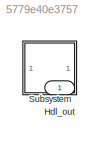
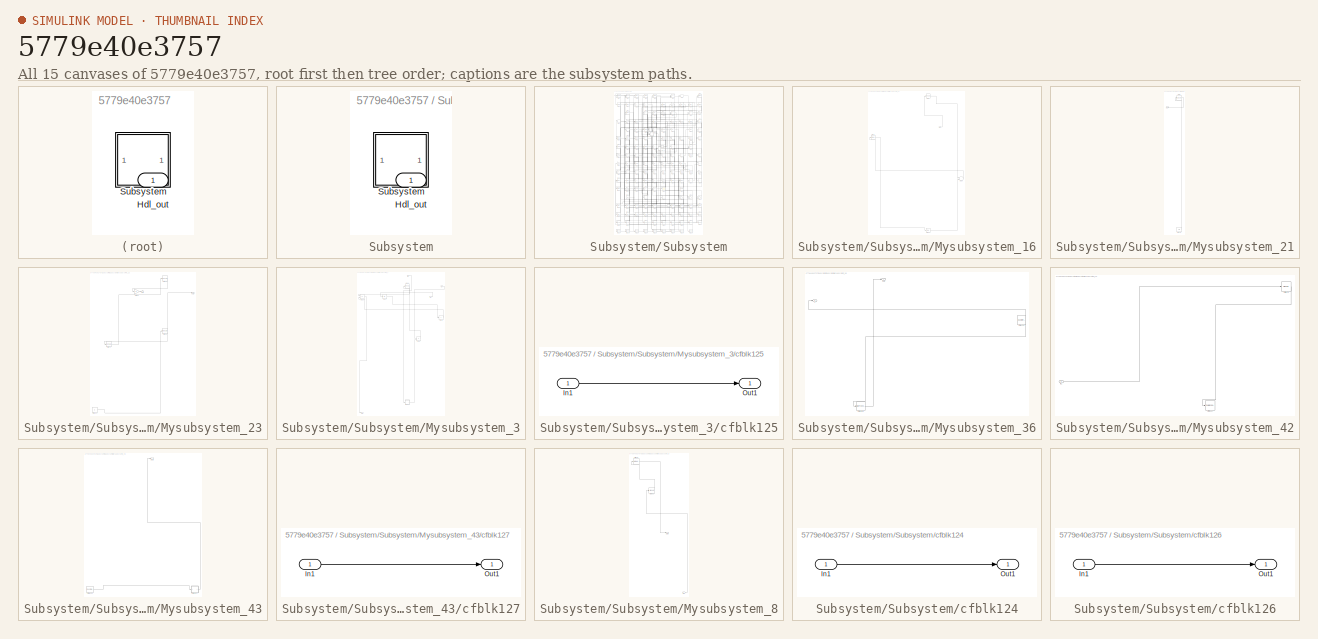
[diagram: thumbnail index - all 15 canvases of the model, root first then tree order]
MODEL slx_5779e40e3757
KIND model
CONFIG AbsTol = auto
CONFIG EnableMultiTasking = off
CONFIG FixedStep = auto
CONFIG MaxStep = auto
CONFIG MinStep = auto
CONFIG RelTol = 1e-3
CONFIG SampleTimeConstraint = Unconstrained
CONFIG SolverName = VariableStepAuto
CONFIG StartTime = 0.0
CONFIG StopTime = 10.0
BLOCK [Outport] Hdl_out
  OutDataTypeStr = uint8
BLOCK [SubSystem] Subsystem
BLOCK [Outport] Subsystem/Hdl_out
  OutDataTypeStr = uint8
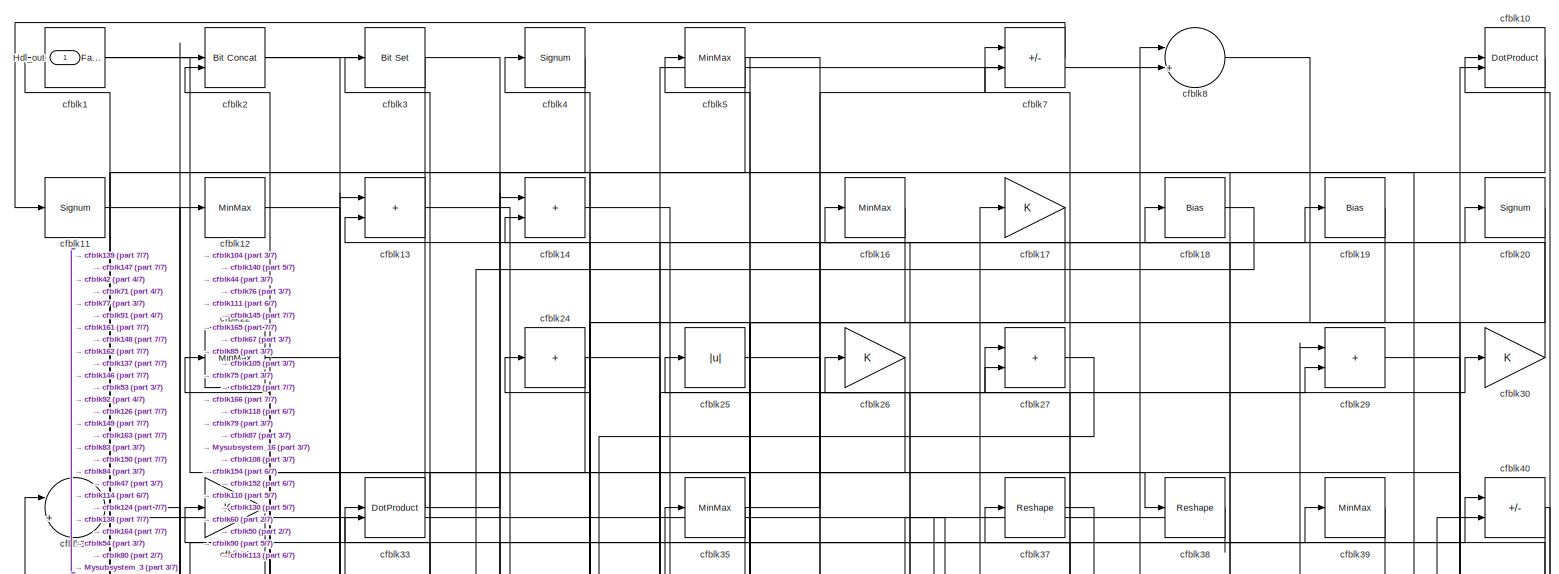
[diagram: Subsystem/Subsystem - part 1/7, full width, top band]
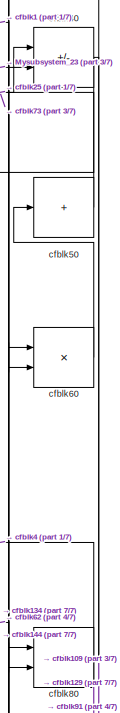
[diagram: Subsystem/Subsystem - part 2/7, top right region]
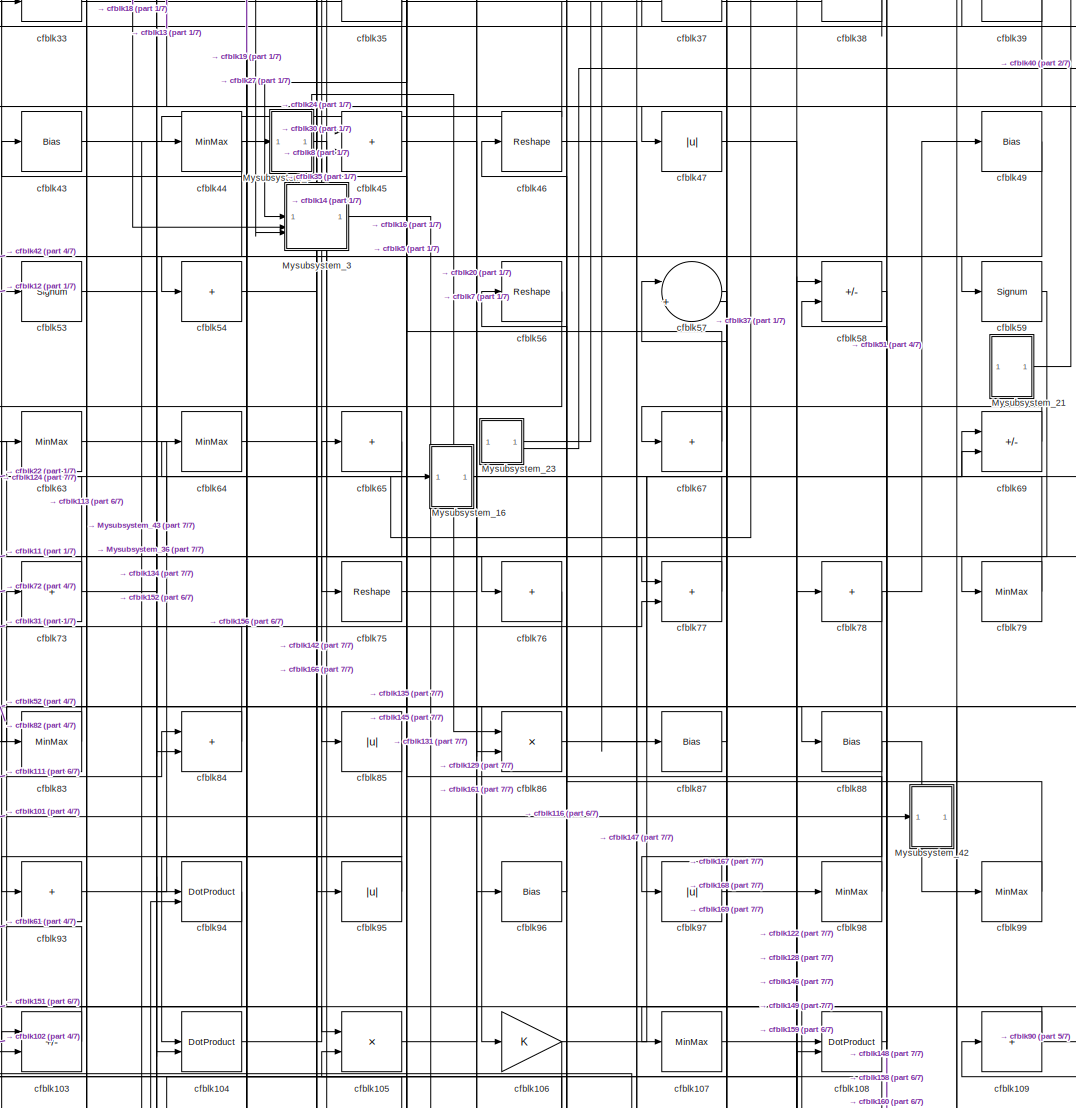
[diagram: Subsystem/Subsystem - part 3/7, central region]
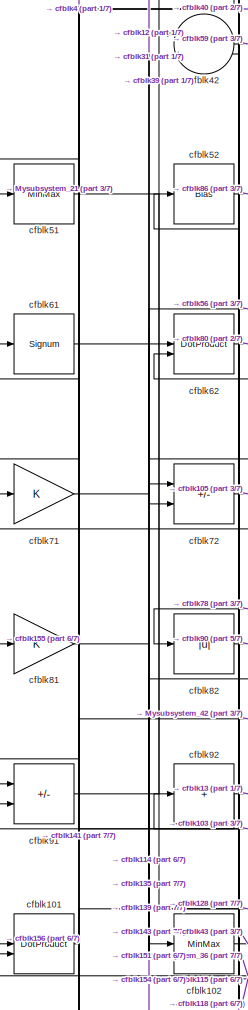
[diagram: Subsystem/Subsystem - part 4/7, middle left region]
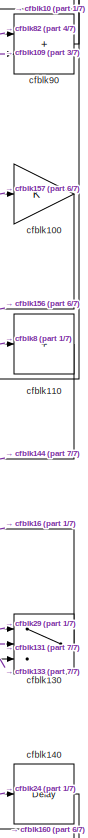
[diagram: Subsystem/Subsystem - part 5/7, middle right region]
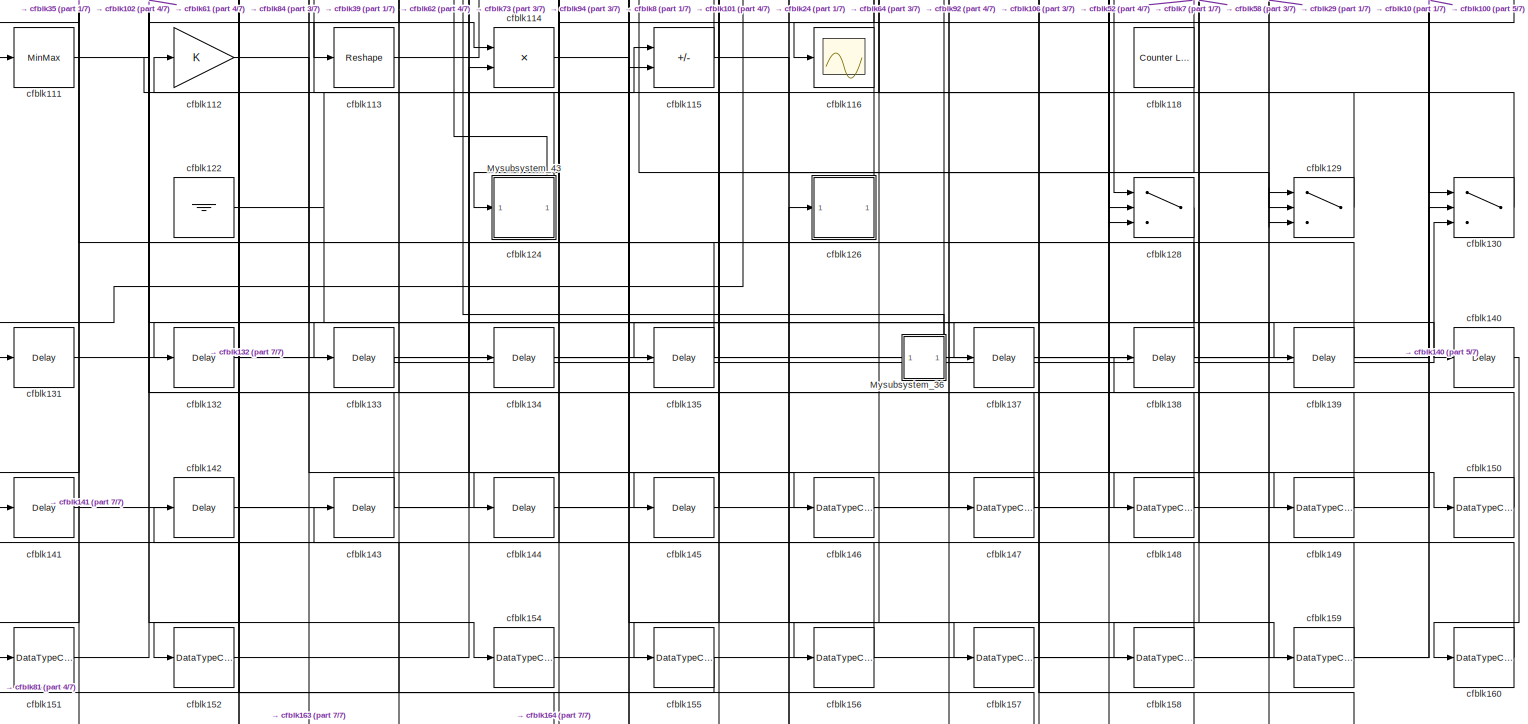
[diagram: Subsystem/Subsystem - part 6/7, full width, bottom band]
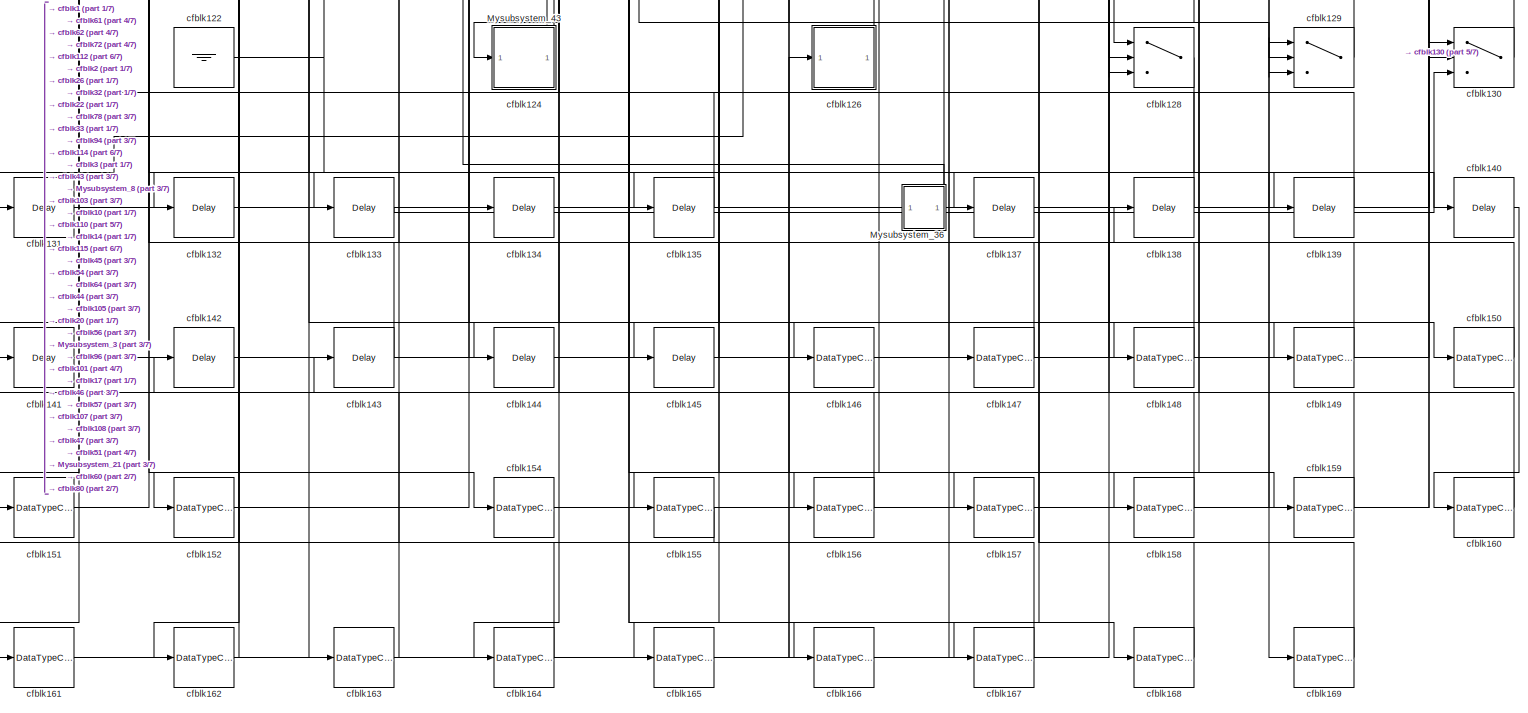
[diagram: Subsystem/Subsystem - part 7/7, full width, bottom band]
BLOCK [SubSystem] Subsystem/Subsystem
BLOCK [Outport] Subsystem/Subsystem/Hdl_out
  OutDataTypeStr = uint8
BLOCK [SubSystem] Subsystem/Subsystem/Mysubsystem_16
  RTWFcnName = Mysubsystem_16
  RTWFcnNameOpts = User specified
  RTWFileNameOpts = Use function name
  RTWSystemCode = Reusable function
  TreatAsAtomicUnit = on
BLOCK [Inport] Subsystem/Subsystem/Mysubsystem_16/In1
BLOCK [Delay] Subsystem/Subsystem/Mysubsystem_16/cfblk136
  InputPortMap = u0
  SampleTime = 1
BLOCK [MinMax] Subsystem/Subsystem/Mysubsystem_16/cfblk41
BLOCK [Reshape] Subsystem/Subsystem/Mysubsystem_16/cfblk6
BLOCK [Sum] Subsystem/Subsystem/Mysubsystem_16/cfblk89
  Inputs = |++
BLOCK [SubSystem] Subsystem/Subsystem/Mysubsystem_21
  RTWFcnName = Mysubsystem_21
  RTWFcnNameOpts = User specified
  RTWFileNameOpts = Use function name
  RTWSystemCode = Reusable function
  TreatAsAtomicUnit = on
BLOCK [Outport] Subsystem/Subsystem/Mysubsystem_21/Out1
BLOCK [Ground] Subsystem/Subsystem/Mysubsystem_21/cfblk119
BLOCK [Signum] Subsystem/Subsystem/Mysubsystem_21/cfblk9
BLOCK [SubSystem] Subsystem/Subsystem/Mysubsystem_23
  RTWFcnName = Mysubsystem_23
  RTWFcnNameOpts = User specified
  RTWFileNameOpts = Use function name
  RTWSystemCode = Reusable function
  TreatAsAtomicUnit = on
BLOCK [Outport] Subsystem/Subsystem/Mysubsystem_23/Out1
BLOCK [Outport] Subsystem/Subsystem/Mysubsystem_23/Out2
  Port = 2
BLOCK [Constant] Subsystem/Subsystem/Mysubsystem_23/cfblk123
  SampleTime = -1
BLOCK [Reshape] Subsystem/Subsystem/Mysubsystem_23/cfblk28
BLOCK [Gain] Subsystem/Subsystem/Mysubsystem_23/cfblk36
BLOCK [Reshape] Subsystem/Subsystem/Mysubsystem_23/cfblk68
BLOCK [Reshape] Subsystem/Subsystem/Mysubsystem_23/cfblk74
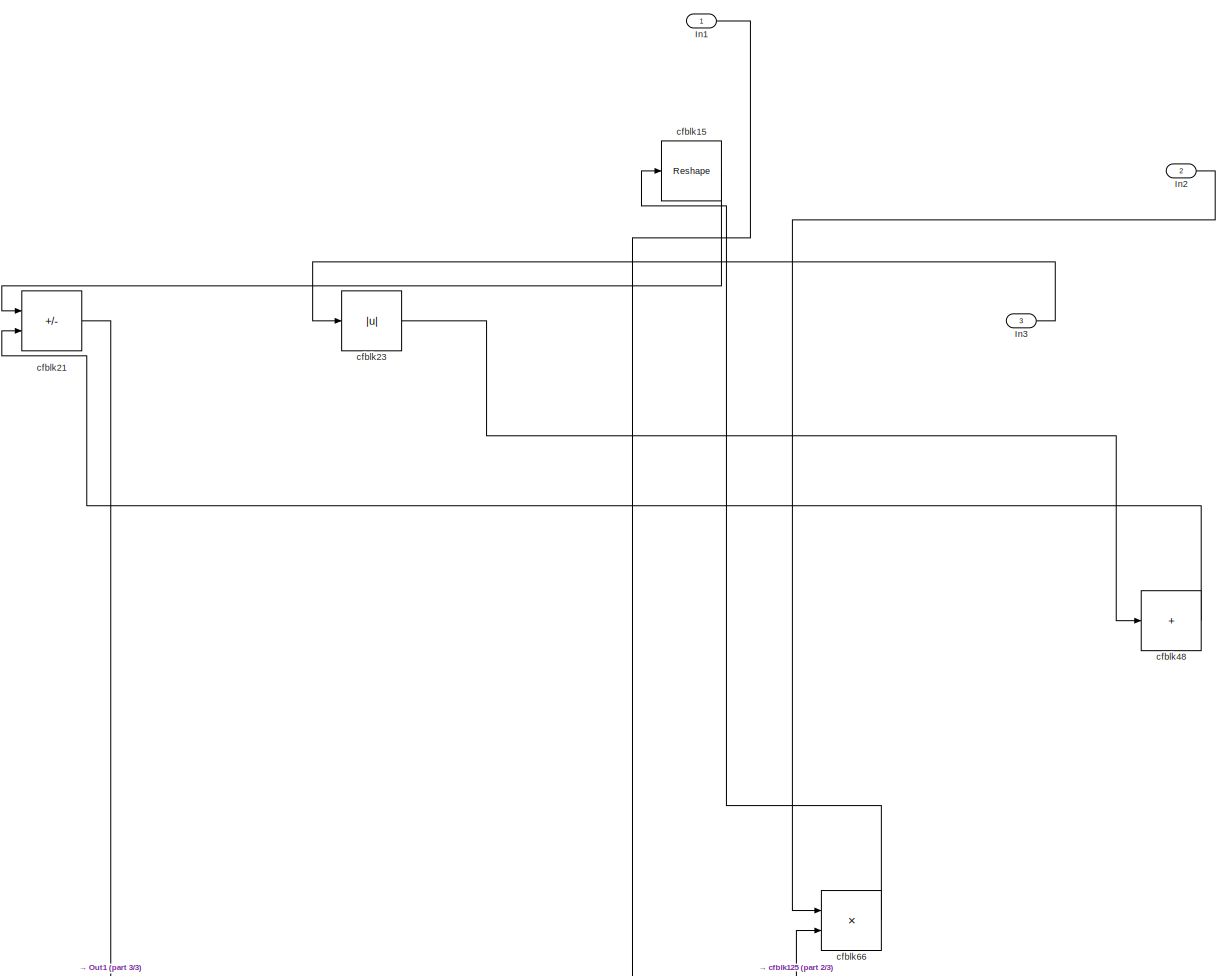
[diagram: Subsystem/Subsystem/Mysubsystem_3 - part 1/3, full width, top band]
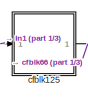
[diagram: Subsystem/Subsystem/Mysubsystem_3 - part 2/3, bottom center region]
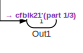
[diagram: Subsystem/Subsystem/Mysubsystem_3 - part 3/3, bottom left region]
BLOCK [SubSystem] Subsystem/Subsystem/Mysubsystem_3
  RTWFcnName = Mysubsystem_3
  RTWFcnNameOpts = User specified
  RTWFileNameOpts = Use function name
  RTWSystemCode = Reusable function
  TreatAsAtomicUnit = on
BLOCK [Inport] Subsystem/Subsystem/Mysubsystem_3/In1
BLOCK [Inport] Subsystem/Subsystem/Mysubsystem_3/In2
  Port = 2
BLOCK [Inport] Subsystem/Subsystem/Mysubsystem_3/In3
  Port = 3
BLOCK [Outport] Subsystem/Subsystem/Mysubsystem_3/Out1
BLOCK [SubSystem] Subsystem/Subsystem/Mysubsystem_3/cfblk125
  LibrarySourceBlock = hdlsllib/Ports &\nSubsystems/Subsystem
BLOCK [Inport] Subsystem/Subsystem/Mysubsystem_3/cfblk125/In1
BLOCK [Outport] Subsystem/Subsystem/Mysubsystem_3/cfblk125/Out1
BLOCK [Reshape] Subsystem/Subsystem/Mysubsystem_3/cfblk15
BLOCK [Sum] Subsystem/Subsystem/Mysubsystem_3/cfblk21
  IconShape = rectangular
  Inputs = +-
BLOCK [Abs] Subsystem/Subsystem/Mysubsystem_3/cfblk23
  SaturateOnIntegerOverflow = off
BLOCK [Sum] Subsystem/Subsystem/Mysubsystem_3/cfblk48
  IconShape = rectangular
  Inputs = +
BLOCK [Product] Subsystem/Subsystem/Mysubsystem_3/cfblk66
  Inputs = */
  RndMeth = Zero
  SaturateOnIntegerOverflow = on
BLOCK [SubSystem] Subsystem/Subsystem/Mysubsystem_36
  RTWFcnName = Mysubsystem_36
  RTWFcnNameOpts = User specified
  RTWFileNameOpts = Use function name
  RTWSystemCode = Reusable function
  TreatAsAtomicUnit = on
BLOCK [Outport] Subsystem/Subsystem/Mysubsystem_36/Out1
BLOCK [Reference] Subsystem/Subsystem/Mysubsystem_36/cfblk120  REF=hdlsllib/Sources/Counter
Free-Running
  SourceBlock = hdlsllib/Sources/Counter\nFree-Running
  SourceType = Counter Free-Running
BLOCK [DataTypeConversion] Subsystem/Subsystem/Mysubsystem_36/cfblk153
  OutDataTypeStr = uint8
  RndMeth = Floor
  SaturateOnIntegerOverflow = off
BLOCK [Outport] Subsystem/Subsystem/Mysubsystem_36/y
  Port = 2
BLOCK [SubSystem] Subsystem/Subsystem/Mysubsystem_42
  RTWFcnName = Mysubsystem_42
  RTWFcnNameOpts = User specified
  RTWFileNameOpts = Use function name
  RTWSystemCode = Reusable function
  TreatAsAtomicUnit = on
BLOCK [Inport] Subsystem/Subsystem/Mysubsystem_42/In1
BLOCK [ToWorkspace] Subsystem/Subsystem/Mysubsystem_42/cfblk117
  MaxDataPoints = inf
  SampleTime = -1
  SaveFormat = Timeseries
  VariableName = simout
BLOCK [Signum] Subsystem/Subsystem/Mysubsystem_42/cfblk70
BLOCK [SubSystem] Subsystem/Subsystem/Mysubsystem_43
  RTWFcnName = Mysubsystem_43
  RTWFcnNameOpts = User specified
  RTWFileNameOpts = Use function name
  RTWSystemCode = Reusable function
  TreatAsAtomicUnit = on
BLOCK [Outport] Subsystem/Subsystem/Mysubsystem_43/Out1
BLOCK [Reference] Subsystem/Subsystem/Mysubsystem_43/cfblk121  REF=hdlsllib/Sources/Counter
Limited
  SourceBlock = hdlsllib/Sources/Counter\nLimited
  SourceType = Counter Limited
BLOCK [SubSystem] Subsystem/Subsystem/Mysubsystem_43/cfblk127
  LibrarySourceBlock = hdlsllib/Ports &\nSubsystems/Subsystem
BLOCK [Inport] Subsystem/Subsystem/Mysubsystem_43/cfblk127/In1
BLOCK [Outport] Subsystem/Subsystem/Mysubsystem_43/cfblk127/Out1
BLOCK [SubSystem] Subsystem/Subsystem/Mysubsystem_8
  RTWFcnName = Mysubsystem_8
  RTWFcnNameOpts = User specified
  RTWFileNameOpts = Use function name
  RTWSystemCode = Reusable function
  TreatAsAtomicUnit = on
BLOCK [Inport] Subsystem/Subsystem/Mysubsystem_8/In1
BLOCK [Outport] Subsystem/Subsystem/Mysubsystem_8/Out1
BLOCK [MinMax] Subsystem/Subsystem/Mysubsystem_8/cfblk34
BLOCK [Signum] Subsystem/Subsystem/Mysubsystem_8/cfblk55
BLOCK [Reference] Subsystem/Subsystem/cfblk1  REF=hdlsllib/Logic and Bit
Operations/Detect Fall
Nonpositive
  SourceBlock = hdlsllib/Logic and Bit\nOperations/Detect Fall\nNonpositive
  SourceType = Detect Fall Nonpositive
BLOCK [DotProduct] Subsystem/Subsystem/cfblk10
  OutDataTypeStr = uint8
BLOCK [Gain] Subsystem/Subsystem/cfblk100
  OutDataTypeStr = uint8
BLOCK [DotProduct] Subsystem/Subsystem/cfblk101
  OutDataTypeStr = uint8
BLOCK [MinMax] Subsystem/Subsystem/cfblk102
  OutDataTypeStr = uint8
BLOCK [Sum] Subsystem/Subsystem/cfblk103
  IconShape = rectangular
  Inputs = +-
  OutDataTypeStr = uint8
BLOCK [DotProduct] Subsystem/Subsystem/cfblk104
  OutDataTypeStr = uint8
BLOCK [Product] Subsystem/Subsystem/cfblk105
  Inputs = */
  OutDataTypeStr = uint8
  RndMeth = Zero
  SaturateOnIntegerOverflow = on
BLOCK [Gain] Subsystem/Subsystem/cfblk106
  OutDataTypeStr = uint8
BLOCK [MinMax] Subsystem/Subsystem/cfblk107
  OutDataTypeStr = uint8
BLOCK [DotProduct] Subsystem/Subsystem/cfblk108
  OutDataTypeStr = uint8
BLOCK [Sum] Subsystem/Subsystem/cfblk109
  IconShape = rectangular
  Inputs = +
  OutDataTypeStr = uint8
BLOCK [Signum] Subsystem/Subsystem/cfblk11
BLOCK [Sum] Subsystem/Subsystem/cfblk110
  IconShape = rectangular
  Inputs = +
  OutDataTypeStr = uint8
BLOCK [MinMax] Subsystem/Subsystem/cfblk111
  OutDataTypeStr = uint8
BLOCK [Gain] Subsystem/Subsystem/cfblk112
  OutDataTypeStr = uint8
BLOCK [Reshape] Subsystem/Subsystem/cfblk113
BLOCK [Product] Subsystem/Subsystem/cfblk114
  Inputs = */
  OutDataTypeStr = uint8
  RndMeth = Zero
  SaturateOnIntegerOverflow = on
BLOCK [Sum] Subsystem/Subsystem/cfblk115
  IconShape = rectangular
  Inputs = +-
  OutDataTypeStr = uint8
BLOCK [Scope] Subsystem/Subsystem/cfblk116
  Floating = off
  NumInputPorts = 1
  ScopeSpecificationString = Simulink.scopes.TimeScopeBlockCfg('CurrentConfiguration', extmgr.ConfigurationSet(extmgr.Configuration('Core','General UI',true),extmgr.Configuration('Core','Source UI',true),extmgr.Configuration('Sources','WiredSimulink',true,'DataLoggingSaveFormat','Array','DataLoggingLimitDataPoints',true,'DataLoggingDecimation','1'),extmgr.Configuration('Visuals','Time Domain',true,'DisplayPropertyDefaults',st...<+829ch>
BLOCK [Reference] Subsystem/Subsystem/cfblk118  REF=hdlsllib/Sources/Counter
Limited
  SourceBlock = hdlsllib/Sources/Counter\nLimited
  SourceType = Counter Limited
BLOCK [MinMax] Subsystem/Subsystem/cfblk12
  OutDataTypeStr = uint8
BLOCK [Ground] Subsystem/Subsystem/cfblk122
BLOCK [SubSystem] Subsystem/Subsystem/cfblk124
  LibrarySourceBlock = hdlsllib/Ports &\nSubsystems/Subsystem
BLOCK [Inport] Subsystem/Subsystem/cfblk124/In1
BLOCK [Outport] Subsystem/Subsystem/cfblk124/Out1
BLOCK [SubSystem] Subsystem/Subsystem/cfblk126
  LibrarySourceBlock = hdlsllib/Ports &\nSubsystems/Subsystem
BLOCK [Inport] Subsystem/Subsystem/cfblk126/In1
BLOCK [Outport] Subsystem/Subsystem/cfblk126/Out1
BLOCK [Switch] Subsystem/Subsystem/cfblk128
  InputSameDT = off
  OutDataTypeStr = uint8
  SaturateOnIntegerOverflow = off
BLOCK [Switch] Subsystem/Subsystem/cfblk129
  InputSameDT = off
  OutDataTypeStr = uint8
  SaturateOnIntegerOverflow = off
BLOCK [Sum] Subsystem/Subsystem/cfblk13
  IconShape = rectangular
  OutDataTypeStr = uint8
BLOCK [Switch] Subsystem/Subsystem/cfblk130
  InputSameDT = off
  OutDataTypeStr = uint8
  SaturateOnIntegerOverflow = off
BLOCK [Delay] Subsystem/Subsystem/cfblk131
  InputPortMap = u0
  SampleTime = 1
BLOCK [Delay] Subsystem/Subsystem/cfblk132
  InputPortMap = u0
  SampleTime = 1
BLOCK [Delay] Subsystem/Subsystem/cfblk133
  InputPortMap = u0
  SampleTime = 1
BLOCK [Delay] Subsystem/Subsystem/cfblk134
  InputPortMap = u0
  SampleTime = 1
BLOCK [Delay] Subsystem/Subsystem/cfblk135
  InputPortMap = u0
  SampleTime = 1
BLOCK [Delay] Subsystem/Subsystem/cfblk137
  InputPortMap = u0
  SampleTime = 1
BLOCK [Delay] Subsystem/Subsystem/cfblk138
  InputPortMap = u0
  SampleTime = 1
BLOCK [Delay] Subsystem/Subsystem/cfblk139
  InputPortMap = u0
  SampleTime = 1
BLOCK [Sum] Subsystem/Subsystem/cfblk14
  IconShape = rectangular
  OutDataTypeStr = uint8
BLOCK [Delay] Subsystem/Subsystem/cfblk140
  InputPortMap = u0
  SampleTime = 1
BLOCK [Delay] Subsystem/Subsystem/cfblk141
  InputPortMap = u0
  SampleTime = 1
BLOCK [Delay] Subsystem/Subsystem/cfblk142
  InputPortMap = u0
  SampleTime = 1
BLOCK [Delay] Subsystem/Subsystem/cfblk143
  InputPortMap = u0
  SampleTime = 1
BLOCK [Delay] Subsystem/Subsystem/cfblk144
  InputPortMap = u0
  SampleTime = 1
BLOCK [Delay] Subsystem/Subsystem/cfblk145
  InputPortMap = u0
  SampleTime = 1
BLOCK [DataTypeConversion] Subsystem/Subsystem/cfblk146
  OutDataTypeStr = uint8
  RndMeth = Floor
  SaturateOnIntegerOverflow = off
BLOCK [DataTypeConversion] Subsystem/Subsystem/cfblk147
  OutDataTypeStr = uint8
  RndMeth = Floor
  SaturateOnIntegerOverflow = off
BLOCK [DataTypeConversion] Subsystem/Subsystem/cfblk148
  OutDataTypeStr = uint8
  RndMeth = Floor
  SaturateOnIntegerOverflow = off
BLOCK [DataTypeConversion] Subsystem/Subsystem/cfblk149
  OutDataTypeStr = uint8
  RndMeth = Floor
  SaturateOnIntegerOverflow = off
BLOCK [DataTypeConversion] Subsystem/Subsystem/cfblk150
  OutDataTypeStr = uint8
  RndMeth = Floor
  SaturateOnIntegerOverflow = off
BLOCK [DataTypeConversion] Subsystem/Subsystem/cfblk151
  OutDataTypeStr = uint8
  RndMeth = Floor
  SaturateOnIntegerOverflow = off
BLOCK [DataTypeConversion] Subsystem/Subsystem/cfblk152
  OutDataTypeStr = uint8
  RndMeth = Floor
  SaturateOnIntegerOverflow = off
BLOCK [DataTypeConversion] Subsystem/Subsystem/cfblk154
  OutDataTypeStr = uint8
  RndMeth = Floor
  SaturateOnIntegerOverflow = off
BLOCK [DataTypeConversion] Subsystem/Subsystem/cfblk155
  OutDataTypeStr = uint8
  RndMeth = Floor
  SaturateOnIntegerOverflow = off
BLOCK [DataTypeConversion] Subsystem/Subsystem/cfblk156
  OutDataTypeStr = uint8
  RndMeth = Floor
  SaturateOnIntegerOverflow = off
BLOCK [DataTypeConversion] Subsystem/Subsystem/cfblk157
  OutDataTypeStr = uint8
  RndMeth = Floor
  SaturateOnIntegerOverflow = off
BLOCK [DataTypeConversion] Subsystem/Subsystem/cfblk158
  OutDataTypeStr = uint8
  RndMeth = Floor
  SaturateOnIntegerOverflow = off
BLOCK [DataTypeConversion] Subsystem/Subsystem/cfblk159
  OutDataTypeStr = uint8
  RndMeth = Floor
  SaturateOnIntegerOverflow = off
BLOCK [MinMax] Subsystem/Subsystem/cfblk16
  OutDataTypeStr = uint8
BLOCK [DataTypeConversion] Subsystem/Subsystem/cfblk160
  OutDataTypeStr = uint8
  RndMeth = Floor
  SaturateOnIntegerOverflow = off
BLOCK [DataTypeConversion] Subsystem/Subsystem/cfblk161
  OutDataTypeStr = uint8
  RndMeth = Floor
  SaturateOnIntegerOverflow = off
BLOCK [DataTypeConversion] Subsystem/Subsystem/cfblk162
  OutDataTypeStr = uint8
  RndMeth = Floor
  SaturateOnIntegerOverflow = off
BLOCK [DataTypeConversion] Subsystem/Subsystem/cfblk163
  OutDataTypeStr = uint8
  RndMeth = Floor
  SaturateOnIntegerOverflow = off
BLOCK [DataTypeConversion] Subsystem/Subsystem/cfblk164
  OutDataTypeStr = uint8
  RndMeth = Floor
  SaturateOnIntegerOverflow = off
BLOCK [DataTypeConversion] Subsystem/Subsystem/cfblk165
  OutDataTypeStr = uint8
  RndMeth = Floor
  SaturateOnIntegerOverflow = off
BLOCK [DataTypeConversion] Subsystem/Subsystem/cfblk166
  OutDataTypeStr = uint8
  RndMeth = Floor
  SaturateOnIntegerOverflow = off
BLOCK [DataTypeConversion] Subsystem/Subsystem/cfblk167
  OutDataTypeStr = uint8
  RndMeth = Floor
  SaturateOnIntegerOverflow = off
BLOCK [DataTypeConversion] Subsystem/Subsystem/cfblk168
  OutDataTypeStr = uint8
  RndMeth = Floor
  SaturateOnIntegerOverflow = off
BLOCK [DataTypeConversion] Subsystem/Subsystem/cfblk169
  OutDataTypeStr = uint8
  RndMeth = Floor
  SaturateOnIntegerOverflow = off
BLOCK [Gain] Subsystem/Subsystem/cfblk17
  OutDataTypeStr = uint8
BLOCK [Bias] Subsystem/Subsystem/cfblk18
  Bias = 0.0
  SaturateOnIntegerOverflow = off
BLOCK [Bias] Subsystem/Subsystem/cfblk19
  Bias = 0.0
  SaturateOnIntegerOverflow = off
BLOCK [Reference] Subsystem/Subsystem/cfblk2  REF=hdlsllib/Logic and Bit
Operations/Bit Concat
  SourceBlock = hdlsllib/Logic and Bit\nOperations/Bit Concat
  SourceType = Bit Concat
BLOCK [Signum] Subsystem/Subsystem/cfblk20
BLOCK [MinMax] Subsystem/Subsystem/cfblk22
  OutDataTypeStr = uint8
BLOCK [Sum] Subsystem/Subsystem/cfblk24
  IconShape = rectangular
  Inputs = +
  OutDataTypeStr = uint8
BLOCK [Abs] Subsystem/Subsystem/cfblk25
  OutDataTypeStr = uint8
  SaturateOnIntegerOverflow = off
BLOCK [Gain] Subsystem/Subsystem/cfblk26
  OutDataTypeStr = uint8
BLOCK [Sum] Subsystem/Subsystem/cfblk27
  IconShape = rectangular
  OutDataTypeStr = uint8
BLOCK [Sum] Subsystem/Subsystem/cfblk29
  IconShape = rectangular
  OutDataTypeStr = uint8
BLOCK [Reference] Subsystem/Subsystem/cfblk3  REF=simulink/Logic and Bit
Operations/Bit Set
  LibrarySourceBlock = hdlsllib/Logic and Bit\nOperations/Bit Set
  SourceBlock = simulink/Logic and Bit\nOperations/Bit Set
  SourceType = Bit Set
BLOCK [Gain] Subsystem/Subsystem/cfblk30
  OutDataTypeStr = uint8
BLOCK [Sum] Subsystem/Subsystem/cfblk31
  Inputs = |++
  OutDataTypeStr = uint8
BLOCK [Gain] Subsystem/Subsystem/cfblk32
  OutDataTypeStr = uint8
BLOCK [DotProduct] Subsystem/Subsystem/cfblk33
  OutDataTypeStr = uint8
BLOCK [MinMax] Subsystem/Subsystem/cfblk35
  OutDataTypeStr = uint8
BLOCK [Reshape] Subsystem/Subsystem/cfblk37
BLOCK [Reshape] Subsystem/Subsystem/cfblk38
BLOCK [MinMax] Subsystem/Subsystem/cfblk39
  OutDataTypeStr = uint8
BLOCK [Signum] Subsystem/Subsystem/cfblk4
BLOCK [Sum] Subsystem/Subsystem/cfblk40
  IconShape = rectangular
  Inputs = +-
  OutDataTypeStr = uint8
BLOCK [Sum] Subsystem/Subsystem/cfblk42
  Inputs = |++
  OutDataTypeStr = uint8
BLOCK [Bias] Subsystem/Subsystem/cfblk43
  Bias = 0.0
  SaturateOnIntegerOverflow = off
BLOCK [MinMax] Subsystem/Subsystem/cfblk44
  OutDataTypeStr = uint8
BLOCK [Sum] Subsystem/Subsystem/cfblk45
  IconShape = rectangular
  OutDataTypeStr = uint8
BLOCK [Reshape] Subsystem/Subsystem/cfblk46
BLOCK [Abs] Subsystem/Subsystem/cfblk47
  OutDataTypeStr = uint8
  SaturateOnIntegerOverflow = off
BLOCK [Bias] Subsystem/Subsystem/cfblk49
  Bias = 0.0
  SaturateOnIntegerOverflow = off
BLOCK [MinMax] Subsystem/Subsystem/cfblk5
  OutDataTypeStr = uint8
BLOCK [Sum] Subsystem/Subsystem/cfblk50
  IconShape = rectangular
  Inputs = +
  OutDataTypeStr = uint8
BLOCK [MinMax] Subsystem/Subsystem/cfblk51
  OutDataTypeStr = uint8
BLOCK [Bias] Subsystem/Subsystem/cfblk52
  Bias = 0.0
  SaturateOnIntegerOverflow = off
BLOCK [Signum] Subsystem/Subsystem/cfblk53
BLOCK [Sum] Subsystem/Subsystem/cfblk54
  IconShape = rectangular
  Inputs = +
  OutDataTypeStr = uint8
BLOCK [Reshape] Subsystem/Subsystem/cfblk56
BLOCK [Sum] Subsystem/Subsystem/cfblk57
  Inputs = |++
  OutDataTypeStr = uint8
BLOCK [Sum] Subsystem/Subsystem/cfblk58
  IconShape = rectangular
  Inputs = +-
  OutDataTypeStr = uint8
BLOCK [Signum] Subsystem/Subsystem/cfblk59
BLOCK [Product] Subsystem/Subsystem/cfblk60
  Inputs = */
  OutDataTypeStr = uint8
  RndMeth = Zero
  SaturateOnIntegerOverflow = on
BLOCK [Signum] Subsystem/Subsystem/cfblk61
BLOCK [DotProduct] Subsystem/Subsystem/cfblk62
  OutDataTypeStr = uint8
BLOCK [MinMax] Subsystem/Subsystem/cfblk63
  OutDataTypeStr = uint8
BLOCK [MinMax] Subsystem/Subsystem/cfblk64
  OutDataTypeStr = uint8
BLOCK [Sum] Subsystem/Subsystem/cfblk65
  IconShape = rectangular
  Inputs = +
  OutDataTypeStr = uint8
BLOCK [Sum] Subsystem/Subsystem/cfblk67
  IconShape = rectangular
  Inputs = +
  OutDataTypeStr = uint8
BLOCK [Sum] Subsystem/Subsystem/cfblk69
  IconShape = rectangular
  Inputs = +-
  OutDataTypeStr = uint8
BLOCK [Sum] Subsystem/Subsystem/cfblk7
  IconShape = rectangular
  Inputs = +-
  OutDataTypeStr = uint8
BLOCK [Gain] Subsystem/Subsystem/cfblk71
  OutDataTypeStr = uint8
BLOCK [Sum] Subsystem/Subsystem/cfblk72
  IconShape = rectangular
  Inputs = +-
  OutDataTypeStr = uint8
BLOCK [Sum] Subsystem/Subsystem/cfblk73
  IconShape = rectangular
  Inputs = +
  OutDataTypeStr = uint8
BLOCK [Reshape] Subsystem/Subsystem/cfblk75
BLOCK [Sum] Subsystem/Subsystem/cfblk76
  IconShape = rectangular
  Inputs = +
  OutDataTypeStr = uint8
BLOCK [Sum] Subsystem/Subsystem/cfblk77
  IconShape = rectangular
  OutDataTypeStr = uint8
BLOCK [Sum] Subsystem/Subsystem/cfblk78
  IconShape = rectangular
  Inputs = +
  OutDataTypeStr = uint8
BLOCK [MinMax] Subsystem/Subsystem/cfblk79
  OutDataTypeStr = uint8
BLOCK [Sum] Subsystem/Subsystem/cfblk8
  Inputs = |++
  OutDataTypeStr = uint8
BLOCK [Sum] Subsystem/Subsystem/cfblk80
  IconShape = rectangular
  OutDataTypeStr = uint8
BLOCK [Gain] Subsystem/Subsystem/cfblk81
  OutDataTypeStr = uint8
BLOCK [Abs] Subsystem/Subsystem/cfblk82
  OutDataTypeStr = uint8
  SaturateOnIntegerOverflow = off
BLOCK [MinMax] Subsystem/Subsystem/cfblk83
  OutDataTypeStr = uint8
BLOCK [Sum] Subsystem/Subsystem/cfblk84
  IconShape = rectangular
  OutDataTypeStr = uint8
BLOCK [Abs] Subsystem/Subsystem/cfblk85
  OutDataTypeStr = uint8
  SaturateOnIntegerOverflow = off
BLOCK [Product] Subsystem/Subsystem/cfblk86
  Inputs = */
  OutDataTypeStr = uint8
  RndMeth = Zero
  SaturateOnIntegerOverflow = on
BLOCK [Bias] Subsystem/Subsystem/cfblk87
  Bias = 0.0
  SaturateOnIntegerOverflow = off
BLOCK [Bias] Subsystem/Subsystem/cfblk88
  Bias = 0.0
  SaturateOnIntegerOverflow = off
BLOCK [Sum] Subsystem/Subsystem/cfblk90
  IconShape = rectangular
  OutDataTypeStr = uint8
BLOCK [Sum] Subsystem/Subsystem/cfblk91
  IconShape = rectangular
  Inputs = +-
  OutDataTypeStr = uint8
BLOCK [Sum] Subsystem/Subsystem/cfblk92
  IconShape = rectangular
  Inputs = +
  OutDataTypeStr = uint8
BLOCK [Sum] Subsystem/Subsystem/cfblk93
  IconShape = rectangular
  Inputs = +
  OutDataTypeStr = uint8
BLOCK [DotProduct] Subsystem/Subsystem/cfblk94
  OutDataTypeStr = uint8
BLOCK [Abs] Subsystem/Subsystem/cfblk95
  OutDataTypeStr = uint8
  SaturateOnIntegerOverflow = off
BLOCK [Bias] Subsystem/Subsystem/cfblk96
  Bias = 0.0
  SaturateOnIntegerOverflow = off
BLOCK [Abs] Subsystem/Subsystem/cfblk97
  OutDataTypeStr = uint8
  SaturateOnIntegerOverflow = off
BLOCK [MinMax] Subsystem/Subsystem/cfblk98
  OutDataTypeStr = uint8
BLOCK [MinMax] Subsystem/Subsystem/cfblk99
  OutDataTypeStr = uint8
LINE Subsystem/Subsystem/Mysubsystem_16/In1:1 -> Subsystem/Subsystem/Mysubsystem_16/cfblk6:1
LINE Subsystem/Subsystem/Mysubsystem_16/cfblk136:1 -> Subsystem/Subsystem/Mysubsystem_16/cfblk89:2
LINE Subsystem/Subsystem/Mysubsystem_16/cfblk41:1 -> Subsystem/Subsystem/Mysubsystem_16/cfblk136:1
LINE Subsystem/Subsystem/Mysubsystem_16/cfblk6:1 -> Subsystem/Subsystem/Mysubsystem_16/cfblk89:1
LINE Subsystem/Subsystem/Mysubsystem_16/cfblk89:1 -> Subsystem/Subsystem/Mysubsystem_16/cfblk41:1
LINE Subsystem/Subsystem/Mysubsystem_21/cfblk119:1 -> Subsystem/Subsystem/Mysubsystem_21/cfblk9:1
LINE Subsystem/Subsystem/Mysubsystem_21/cfblk9:1 -> Subsystem/Subsystem/Mysubsystem_21/Out1:1
NET Subsystem/Subsystem/Mysubsystem_21:1 -> Subsystem/Subsystem/cfblk148:1, Subsystem/Subsystem/cfblk51:1
LINE Subsystem/Subsystem/Mysubsystem_23/cfblk123:1 -> Subsystem/Subsystem/Mysubsystem_23/cfblk68:1
LINE Subsystem/Subsystem/Mysubsystem_23/cfblk28:1 -> Subsystem/Subsystem/Mysubsystem_23/cfblk36:1
LINE Subsystem/Subsystem/Mysubsystem_23/cfblk36:1 -> Subsystem/Subsystem/Mysubsystem_23/Out1:1
NET Subsystem/Subsystem/Mysubsystem_23/cfblk68:1 -> Subsystem/Subsystem/Mysubsystem_23/Out2:1, Subsystem/Subsystem/Mysubsystem_23/cfblk74:1
LINE Subsystem/Subsystem/Mysubsystem_23/cfblk74:1 -> Subsystem/Subsystem/Mysubsystem_23/cfblk28:1
NET Subsystem/Subsystem/Mysubsystem_23:1 -> Subsystem/Subsystem/cfblk44:1, Subsystem/Subsystem/cfblk87:1
LINE Subsystem/Subsystem/Mysubsystem_23:2 -> Subsystem/Subsystem/cfblk40:2
LINE Subsystem/Subsystem/Mysubsystem_3/In1:1 -> Subsystem/Subsystem/Mysubsystem_3/cfblk125:1
LINE Subsystem/Subsystem/Mysubsystem_3/In2:1 -> Subsystem/Subsystem/Mysubsystem_3/cfblk66:1
LINE Subsystem/Subsystem/Mysubsystem_3/In3:1 -> Subsystem/Subsystem/Mysubsystem_3/cfblk23:1
LINE Subsystem/Subsystem/Mysubsystem_3/cfblk125/In1:1 -> Subsystem/Subsystem/Mysubsystem_3/cfblk125/Out1:1
LINE Subsystem/Subsystem/Mysubsystem_3/cfblk125:1 -> Subsystem/Subsystem/Mysubsystem_3/cfblk66:2
LINE Subsystem/Subsystem/Mysubsystem_3/cfblk15:1 -> Subsystem/Subsystem/Mysubsystem_3/cfblk21:1
LINE Subsystem/Subsystem/Mysubsystem_3/cfblk21:1 -> Subsystem/Subsystem/Mysubsystem_3/Out1:1
LINE Subsystem/Subsystem/Mysubsystem_3/cfblk23:1 -> Subsystem/Subsystem/Mysubsystem_3/cfblk48:1
LINE Subsystem/Subsystem/Mysubsystem_3/cfblk48:1 -> Subsystem/Subsystem/Mysubsystem_3/cfblk21:2
LINE Subsystem/Subsystem/Mysubsystem_3/cfblk66:1 -> Subsystem/Subsystem/Mysubsystem_3/cfblk15:1
NET Subsystem/Subsystem/Mysubsystem_36/cfblk120:1 -> Subsystem/Subsystem/Mysubsystem_36/cfblk153:1, Subsystem/Subsystem/Mysubsystem_36/y:1
LINE Subsystem/Subsystem/Mysubsystem_36/cfblk153:1 -> Subsystem/Subsystem/Mysubsystem_36/Out1:1
LINE Subsystem/Subsystem/Mysubsystem_36:1 -> Subsystem/Subsystem/cfblk94:2
LINE Subsystem/Subsystem/Mysubsystem_36:2 -> Subsystem/Subsystem/cfblk101:2
LINE Subsystem/Subsystem/Mysubsystem_3:1 -> Subsystem/Subsystem/cfblk131:1
LINE Subsystem/Subsystem/Mysubsystem_42/In1:1 -> Subsystem/Subsystem/Mysubsystem_42/cfblk70:1
LINE Subsystem/Subsystem/Mysubsystem_42/cfblk70:1 -> Subsystem/Subsystem/Mysubsystem_42/cfblk117:1
LINE Subsystem/Subsystem/Mysubsystem_43/cfblk121:1 -> Subsystem/Subsystem/Mysubsystem_43/cfblk127:1
LINE Subsystem/Subsystem/Mysubsystem_43/cfblk127/In1:1 -> Subsystem/Subsystem/Mysubsystem_43/cfblk127/Out1:1
LINE Subsystem/Subsystem/Mysubsystem_43/cfblk127:1 -> Subsystem/Subsystem/Mysubsystem_43/Out1:1
LINE Subsystem/Subsystem/Mysubsystem_43:1 -> Subsystem/Subsystem/Mysubsystem_8:1
LINE Subsystem/Subsystem/Mysubsystem_8/In1:1 -> Subsystem/Subsystem/Mysubsystem_8/cfblk55:1
LINE Subsystem/Subsystem/Mysubsystem_8/cfblk34:1 -> Subsystem/Subsystem/Mysubsystem_8/Out1:1
LINE Subsystem/Subsystem/Mysubsystem_8/cfblk55:1 -> Subsystem/Subsystem/Mysubsystem_8/cfblk34:1
LINE Subsystem/Subsystem/Mysubsystem_8:1 -> Subsystem/Subsystem/cfblk86:1
LINE Subsystem/Subsystem/cfblk100:1 -> Subsystem/Subsystem/cfblk156:1
NET Subsystem/Subsystem/cfblk101:1 -> Subsystem/Subsystem/Mysubsystem_42:1, Subsystem/Subsystem/cfblk141:1
LINE Subsystem/Subsystem/cfblk102:1 -> Subsystem/Subsystem/cfblk43:1
NET Subsystem/Subsystem/cfblk103:1 -> Subsystem/Subsystem/cfblk42:2, Subsystem/Subsystem/cfblk61:1
NET Subsystem/Subsystem/cfblk104:1 -> Subsystem/Subsystem/cfblk19:1, Subsystem/Subsystem/cfblk35:1
LINE Subsystem/Subsystem/cfblk105:1 -> Subsystem/Subsystem/cfblk20:1
NET Subsystem/Subsystem/cfblk106:1 -> Subsystem/Subsystem/cfblk116:1, Subsystem/Subsystem/cfblk69:2
LINE Subsystem/Subsystem/cfblk107:1 -> Subsystem/Subsystem/cfblk149:1
LINE Subsystem/Subsystem/cfblk108:1 -> Subsystem/Subsystem/cfblk18:1
NET Subsystem/Subsystem/cfblk109:1 -> Subsystem/Subsystem/cfblk107:1, Subsystem/Subsystem/cfblk90:2
LINE Subsystem/Subsystem/cfblk10:1 -> Subsystem/Subsystem/cfblk124:1
LINE Subsystem/Subsystem/cfblk110:1 -> Subsystem/Subsystem/cfblk144:1
NET Subsystem/Subsystem/cfblk111:1 -> Subsystem/Subsystem/cfblk115:1, Subsystem/Subsystem/cfblk84:1
LINE Subsystem/Subsystem/cfblk112:1 -> Subsystem/Subsystem/cfblk163:1
LINE Subsystem/Subsystem/cfblk113:1 -> Subsystem/Subsystem/cfblk8:1
NET Subsystem/Subsystem/cfblk114:1 -> Subsystem/Subsystem/cfblk157:1, Subsystem/Subsystem/cfblk24:1
NET Subsystem/Subsystem/cfblk115:1 -> Subsystem/Subsystem/cfblk159:1, Subsystem/Subsystem/cfblk92:1
NET Subsystem/Subsystem/cfblk118:1 -> Subsystem/Subsystem/cfblk155:1, Subsystem/Subsystem/cfblk52:1, Subsystem/Subsystem/cfblk7:2
LINE Subsystem/Subsystem/cfblk11:1 -> Subsystem/Subsystem/cfblk77:1
NET Subsystem/Subsystem/cfblk122:1 -> Subsystem/Subsystem/cfblk169:1, Subsystem/Subsystem/cfblk78:1
LINE Subsystem/Subsystem/cfblk124/In1:1 -> Subsystem/Subsystem/cfblk124/Out1:1
LINE Subsystem/Subsystem/cfblk124:1 -> Subsystem/Subsystem/cfblk103:1
LINE Subsystem/Subsystem/cfblk126/In1:1 -> Subsystem/Subsystem/cfblk126/Out1:1
LINE Subsystem/Subsystem/cfblk126:1 -> Subsystem/Subsystem/cfblk33:1
NET Subsystem/Subsystem/cfblk128:1 -> Subsystem/Subsystem/cfblk132:1, Subsystem/Subsystem/cfblk133:1
LINE Subsystem/Subsystem/cfblk129:1 -> Subsystem/Subsystem/cfblk26:1
LINE Subsystem/Subsystem/cfblk12:1 -> Subsystem/Subsystem/cfblk53:1
LINE Subsystem/Subsystem/cfblk130:1 -> Subsystem/Subsystem/cfblk16:1
LINE Subsystem/Subsystem/cfblk131:1 -> Subsystem/Subsystem/cfblk130:2
LINE Subsystem/Subsystem/cfblk132:1 -> Subsystem/Subsystem/cfblk115:2
LINE Subsystem/Subsystem/cfblk133:1 -> Subsystem/Subsystem/cfblk130:3
LINE Subsystem/Subsystem/cfblk134:1 -> Subsystem/Subsystem/cfblk60:1
LINE Subsystem/Subsystem/cfblk135:1 -> Subsystem/Subsystem/cfblk62:1
LINE Subsystem/Subsystem/cfblk137:1 -> Subsystem/Subsystem/cfblk129:1
LINE Subsystem/Subsystem/cfblk138:1 -> Subsystem/Subsystem/cfblk14:2
LINE Subsystem/Subsystem/cfblk139:1 -> Subsystem/Subsystem/cfblk1:1
LINE Subsystem/Subsystem/cfblk13:1 -> Subsystem/Subsystem/cfblk47:1
LINE Subsystem/Subsystem/cfblk140:1 -> Subsystem/Subsystem/cfblk160:1
LINE Subsystem/Subsystem/cfblk141:1 -> Subsystem/Subsystem/cfblk114:2
LINE Subsystem/Subsystem/cfblk142:1 -> Subsystem/Subsystem/cfblk45:1
LINE Subsystem/Subsystem/cfblk143:1 -> Subsystem/Subsystem/cfblk72:1
LINE Subsystem/Subsystem/cfblk144:1 -> Subsystem/Subsystem/cfblk80:1
LINE Subsystem/Subsystem/cfblk145:1 -> Subsystem/Subsystem/cfblk105:2
LINE Subsystem/Subsystem/cfblk146:1 -> Subsystem/Subsystem/cfblk108:1
LINE Subsystem/Subsystem/cfblk147:1 -> Subsystem/Subsystem/cfblk2:1
LINE Subsystem/Subsystem/cfblk148:1 -> Subsystem/Subsystem/cfblk2:2
LINE Subsystem/Subsystem/cfblk149:1 -> Subsystem/Subsystem/cfblk3:1
LINE Subsystem/Subsystem/cfblk14:1 -> Subsystem/Subsystem/cfblk76:1
LINE Subsystem/Subsystem/cfblk150:1 -> Subsystem/Subsystem/cfblk138:1
LINE Subsystem/Subsystem/cfblk151:1 -> Subsystem/Subsystem/cfblk102:1
LINE Subsystem/Subsystem/cfblk152:1 -> Subsystem/Subsystem/cfblk94:1
NET Subsystem/Subsystem/cfblk154:1 -> Subsystem/Subsystem/cfblk10:2, Subsystem/Subsystem/cfblk29:1
LINE Subsystem/Subsystem/cfblk155:1 -> Subsystem/Subsystem/cfblk81:1
NET Subsystem/Subsystem/cfblk156:1 -> Subsystem/Subsystem/cfblk101:1, Subsystem/Subsystem/cfblk64:1
LINE Subsystem/Subsystem/cfblk157:1 -> Subsystem/Subsystem/cfblk100:1
LINE Subsystem/Subsystem/cfblk158:1 -> Subsystem/Subsystem/cfblk62:2
LINE Subsystem/Subsystem/cfblk159:1 -> Subsystem/Subsystem/cfblk58:1
LINE Subsystem/Subsystem/cfblk160:1 -> Subsystem/Subsystem/cfblk58:2
NET Subsystem/Subsystem/cfblk161:1 -> Subsystem/Subsystem/cfblk108:2, Subsystem/Subsystem/cfblk96:1
LINE Subsystem/Subsystem/cfblk162:1 -> Subsystem/Subsystem/cfblk32:1
LINE Subsystem/Subsystem/cfblk163:1 -> Subsystem/Subsystem/cfblk33:2
LINE Subsystem/Subsystem/cfblk164:1 -> Subsystem/Subsystem/cfblk112:1
LINE Subsystem/Subsystem/cfblk165:1 -> Subsystem/Subsystem/cfblk126:1
LINE Subsystem/Subsystem/cfblk166:1 -> Subsystem/Subsystem/cfblk17:1
NET Subsystem/Subsystem/cfblk167:1 -> Subsystem/Subsystem/cfblk142:1, Subsystem/Subsystem/cfblk143:1
LINE Subsystem/Subsystem/cfblk168:1 -> Subsystem/Subsystem/cfblk57:1
LINE Subsystem/Subsystem/cfblk169:1 -> Subsystem/Subsystem/cfblk57:2
LINE Subsystem/Subsystem/cfblk16:1 -> Subsystem/Subsystem/cfblk85:1
LINE Subsystem/Subsystem/cfblk17:1 -> Subsystem/Subsystem/cfblk165:1
LINE Subsystem/Subsystem/cfblk18:1 -> Subsystem/Subsystem/Mysubsystem_3:2
LINE Subsystem/Subsystem/cfblk19:1 -> Subsystem/Subsystem/cfblk54:1
LINE Subsystem/Subsystem/cfblk1:1 -> Subsystem/Subsystem/cfblk60:2
NET Subsystem/Subsystem/cfblk20:1 -> Subsystem/Subsystem/cfblk145:1, Subsystem/Subsystem/cfblk164:1
LINE Subsystem/Subsystem/cfblk22:1 -> Subsystem/Subsystem/cfblk137:1
NET Subsystem/Subsystem/cfblk24:1 -> Subsystem/Subsystem/cfblk140:1, Subsystem/Subsystem/cfblk83:1
LINE Subsystem/Subsystem/cfblk25:1 -> Subsystem/Subsystem/cfblk29:2
LINE Subsystem/Subsystem/cfblk26:1 -> Subsystem/Subsystem/cfblk162:1
LINE Subsystem/Subsystem/cfblk27:1 -> Subsystem/Subsystem/Mysubsystem_3:3
LINE Subsystem/Subsystem/cfblk29:1 -> Subsystem/Subsystem/cfblk130:1
LINE Subsystem/Subsystem/cfblk2:1 -> Subsystem/Subsystem/cfblk146:1
LINE Subsystem/Subsystem/cfblk30:1 -> Subsystem/Subsystem/cfblk13:2
LINE Subsystem/Subsystem/cfblk31:1 -> Subsystem/Subsystem/cfblk42:1
LINE Subsystem/Subsystem/cfblk32:1 -> Subsystem/Subsystem/cfblk161:1
NET Subsystem/Subsystem/cfblk33:1 -> Subsystem/Subsystem/Hdl_out:1, Subsystem/Subsystem/cfblk14:1
NET Subsystem/Subsystem/cfblk35:1 -> Subsystem/Subsystem/cfblk111:1, Subsystem/Subsystem/cfblk27:1
LINE Subsystem/Subsystem/cfblk37:1 -> Subsystem/Subsystem/Mysubsystem_16:1
LINE Subsystem/Subsystem/cfblk38:1 -> Subsystem/Subsystem/cfblk31:2
LINE Subsystem/Subsystem/cfblk39:1 -> Subsystem/Subsystem/cfblk152:1
LINE Subsystem/Subsystem/cfblk3:1 -> Subsystem/Subsystem/cfblk150:1
NET Subsystem/Subsystem/cfblk40:1 -> Subsystem/Subsystem/cfblk109:1, Subsystem/Subsystem/cfblk91:1
LINE Subsystem/Subsystem/cfblk42:1 -> Subsystem/Subsystem/cfblk59:1
LINE Subsystem/Subsystem/cfblk43:1 -> Subsystem/Subsystem/cfblk134:1
NET Subsystem/Subsystem/cfblk44:1 -> Subsystem/Subsystem/cfblk103:2, Subsystem/Subsystem/cfblk128:2, Subsystem/Subsystem/cfblk8:2
LINE Subsystem/Subsystem/cfblk45:1 -> Subsystem/Subsystem/cfblk129:2
LINE Subsystem/Subsystem/cfblk46:1 -> Subsystem/Subsystem/cfblk147:1
LINE Subsystem/Subsystem/cfblk47:1 -> Subsystem/Subsystem/cfblk128:3
LINE Subsystem/Subsystem/cfblk49:1 -> Subsystem/Subsystem/cfblk104:2
LINE Subsystem/Subsystem/cfblk4:1 -> Subsystem/Subsystem/cfblk71:1
LINE Subsystem/Subsystem/cfblk50:1 -> Subsystem/Subsystem/cfblk25:1
LINE Subsystem/Subsystem/cfblk51:1 -> Subsystem/Subsystem/cfblk128:1
LINE Subsystem/Subsystem/cfblk52:1 -> Subsystem/Subsystem/cfblk86:2
LINE Subsystem/Subsystem/cfblk53:1 -> Subsystem/Subsystem/cfblk88:1
NET Subsystem/Subsystem/cfblk54:1 -> Subsystem/Subsystem/cfblk166:1, Subsystem/Subsystem/cfblk30:1
NET Subsystem/Subsystem/cfblk56:1 -> Subsystem/Subsystem/cfblk135:1, Subsystem/Subsystem/cfblk72:2
LINE Subsystem/Subsystem/cfblk57:1 -> Subsystem/Subsystem/cfblk167:1
LINE Subsystem/Subsystem/cfblk58:1 -> Subsystem/Subsystem/cfblk158:1
LINE Subsystem/Subsystem/cfblk59:1 -> Subsystem/Subsystem/cfblk79:1
NET Subsystem/Subsystem/cfblk5:1 -> Subsystem/Subsystem/Mysubsystem_3:1, Subsystem/Subsystem/cfblk38:1, Subsystem/Subsystem/cfblk84:2
LINE Subsystem/Subsystem/cfblk60:1 -> Subsystem/Subsystem/cfblk50:1
NET Subsystem/Subsystem/cfblk61:1 -> Subsystem/Subsystem/cfblk114:1, Subsystem/Subsystem/cfblk139:1
LINE Subsystem/Subsystem/cfblk62:1 -> Subsystem/Subsystem/cfblk80:2
LINE Subsystem/Subsystem/cfblk63:1 -> Subsystem/Subsystem/cfblk95:1
LINE Subsystem/Subsystem/cfblk64:1 -> Subsystem/Subsystem/cfblk168:1
LINE Subsystem/Subsystem/cfblk65:1 -> Subsystem/Subsystem/cfblk75:1
LINE Subsystem/Subsystem/cfblk67:1 -> Subsystem/Subsystem/cfblk5:1
LINE Subsystem/Subsystem/cfblk69:1 -> Subsystem/Subsystem/cfblk67:1
LINE Subsystem/Subsystem/cfblk71:1 -> Subsystem/Subsystem/cfblk12:1
LINE Subsystem/Subsystem/cfblk72:1 -> Subsystem/Subsystem/cfblk105:1
NET Subsystem/Subsystem/cfblk73:1 -> Subsystem/Subsystem/cfblk113:1, Subsystem/Subsystem/cfblk40:1, Subsystem/Subsystem/cfblk63:1
LINE Subsystem/Subsystem/cfblk75:1 -> Subsystem/Subsystem/cfblk7:1
LINE Subsystem/Subsystem/cfblk76:1 -> Subsystem/Subsystem/cfblk106:1
LINE Subsystem/Subsystem/cfblk77:1 -> Subsystem/Subsystem/cfblk22:1
NET Subsystem/Subsystem/cfblk78:1 -> Subsystem/Subsystem/cfblk49:1, Subsystem/Subsystem/cfblk82:1
LINE Subsystem/Subsystem/cfblk79:1 -> Subsystem/Subsystem/cfblk37:1
LINE Subsystem/Subsystem/cfblk7:1 -> Subsystem/Subsystem/cfblk11:1
NET Subsystem/Subsystem/cfblk80:1 -> Subsystem/Subsystem/cfblk129:3, Subsystem/Subsystem/cfblk4:1
LINE Subsystem/Subsystem/cfblk81:1 -> Subsystem/Subsystem/cfblk154:1
LINE Subsystem/Subsystem/cfblk82:1 -> Subsystem/Subsystem/cfblk90:1
LINE Subsystem/Subsystem/cfblk83:1 -> Subsystem/Subsystem/cfblk31:1
LINE Subsystem/Subsystem/cfblk84:1 -> Subsystem/Subsystem/cfblk73:1
LINE Subsystem/Subsystem/cfblk85:1 -> Subsystem/Subsystem/cfblk104:1
LINE Subsystem/Subsystem/cfblk86:1 -> Subsystem/Subsystem/cfblk69:1
LINE Subsystem/Subsystem/cfblk87:1 -> Subsystem/Subsystem/cfblk27:2
NET Subsystem/Subsystem/cfblk88:1 -> Subsystem/Subsystem/cfblk97:1, Subsystem/Subsystem/cfblk99:1
LINE Subsystem/Subsystem/cfblk8:1 -> Subsystem/Subsystem/cfblk110:1
LINE Subsystem/Subsystem/cfblk90:1 -> Subsystem/Subsystem/cfblk10:1
LINE Subsystem/Subsystem/cfblk91:1 -> Subsystem/Subsystem/cfblk39:1
NET Subsystem/Subsystem/cfblk92:1 -> Subsystem/Subsystem/cfblk13:1, Subsystem/Subsystem/cfblk91:2
NET Subsystem/Subsystem/cfblk93:1 -> Subsystem/Subsystem/cfblk65:1, Subsystem/Subsystem/cfblk77:2
LINE Subsystem/Subsystem/cfblk94:1 -> Subsystem/Subsystem/cfblk151:1
LINE Subsystem/Subsystem/cfblk95:1 -> Subsystem/Subsystem/cfblk93:1
LINE Subsystem/Subsystem/cfblk96:1 -> Subsystem/Subsystem/cfblk56:1
LINE Subsystem/Subsystem/cfblk97:1 -> Subsystem/Subsystem/cfblk98:1
LINE Subsystem/Subsystem/cfblk98:1 -> Subsystem/Subsystem/cfblk45:2
LINE Subsystem/Subsystem/cfblk99:1 -> Subsystem/Subsystem/cfblk46:1
note: NET lines group one-source signal fan-out (src -> all destinations, sorted); 1:1 wires keep LINE
